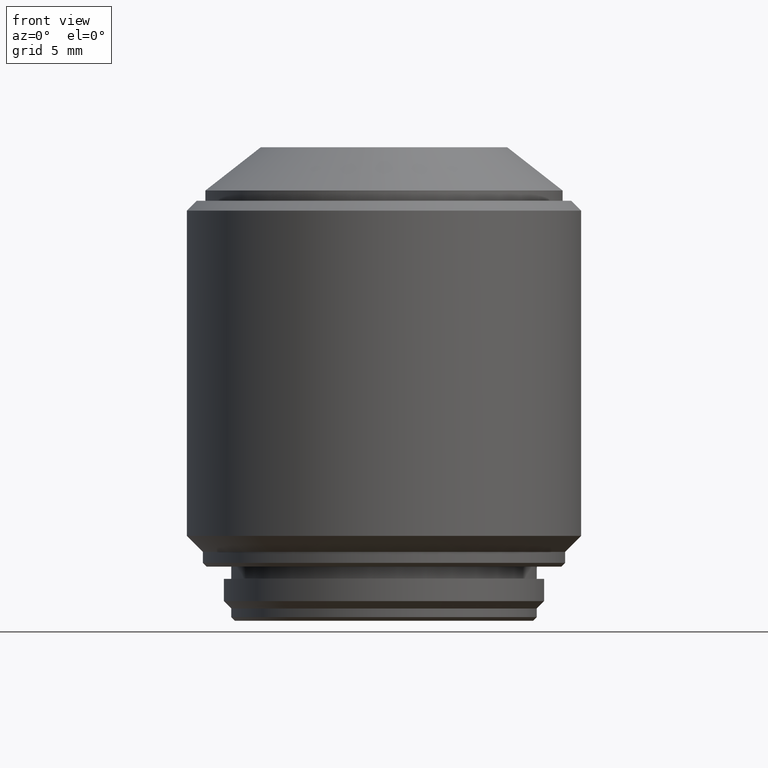
[diagram: clean part render]
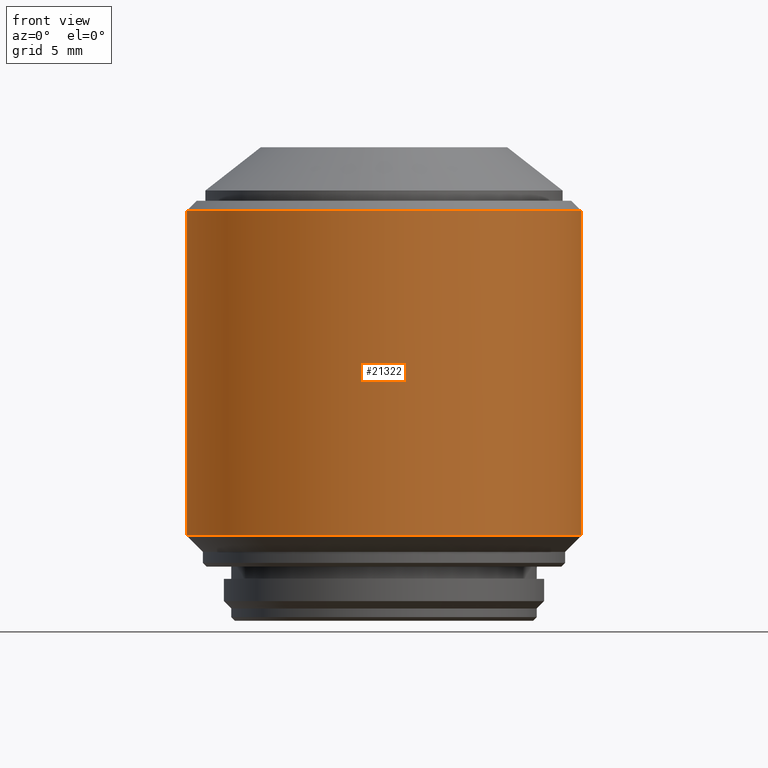
[diagram: same view with one face highlighted and labeled with its STEP entity id]
A machine part, front view. The second image highlights one B-rep face of the part: STEP entity #21322.
In plain terms, the highlighted cylindrical surface (partial cylindrical patch) has radius 16 mm, axis along (0, 0, -1).
Its self-contained STEP definition (entity closure, byte-faithful):
#663 = EDGE_LOOP ( 'NONE', ( #6237, #21245, #6959, #5914 ) ) ;
#1133 = DIRECTION ( 'NONE',  ( 0.000000000000000000, 0.000000000000000000, -1.000000000000000000 ) ) ;
#5695 = VERTEX_POINT ( 'NONE', #10305 ) ;
#5914 = ORIENTED_EDGE ( 'NONE', *, *, #10398, .T. ) ;
#6008 = DIRECTION ( 'NONE',  ( 1.000000000000000000, 0.000000000000000000, 0.000000000000000000 ) ) ;
#6174 = AXIS2_PLACEMENT_3D ( 'NONE', #13878, #23246, #10052 ) ;
#6237 = ORIENTED_EDGE ( 'NONE', *, *, #16506, .F. ) ;
#6426 = LINE ( 'NONE', #23743, #11538 ) ;
#6959 = ORIENTED_EDGE ( 'NONE', *, *, #12247, .T. ) ;
#7082 = DIRECTION ( 'NONE',  ( -1.000000000000000000, 0.000000000000000000, 0.000000000000000000 ) ) ;
#7157 = CARTESIAN_POINT ( 'NONE',  ( -15.99999999999998579, 0.000000000000000000, 33.30000000000000426 ) ) ;
#8249 = VECTOR ( 'NONE', #1133, 1000.000000000000000 ) ;
#10052 = DIRECTION ( 'NONE',  ( -1.000000000000000000, 0.000000000000000000, 0.000000000000000000 ) ) ;
#10305 = CARTESIAN_POINT ( 'NONE',  ( -15.99999999999999289, 1.959434878635763948E-15, 6.899999999999999467 ) ) ;
#10398 = EDGE_CURVE ( 'NONE', #5695, #10740, #18601, .T. ) ;
#10740 = VERTEX_POINT ( 'NONE', #22122 ) ;
#11538 = VECTOR ( 'NONE', #23362, 1000.000000000000000 ) ;
#12247 = EDGE_CURVE ( 'NONE', #13995, #5695, #18087, .T. ) ;
#12986 = FACE_OUTER_BOUND ( 'NONE', #663, .T. ) ;
#13878 = CARTESIAN_POINT ( 'NONE',  ( 0.000000000000000000, 0.000000000000000000, 6.899999999999999467 ) ) ;
#13995 = VERTEX_POINT ( 'NONE', #7157 ) ;
#14159 = DIRECTION ( 'NONE',  ( 0.000000000000000000, 0.000000000000000000, -1.000000000000000000 ) ) ;
#14250 = AXIS2_PLACEMENT_3D ( 'NONE', #24278, #16877, #7082 ) ;
#15341 = CYLINDRICAL_SURFACE ( 'NONE', #14250, 16.00000000000000000 ) ;
#15502 = EDGE_CURVE ( 'NONE', #23435, #13995, #23569, .T. ) ;
#16506 = EDGE_CURVE ( 'NONE', #23435, #10740, #6426, .T. ) ;
#16877 = DIRECTION ( 'NONE',  ( 0.000000000000000000, 0.000000000000000000, -1.000000000000000000 ) ) ;
#17425 = CARTESIAN_POINT ( 'NONE',  ( 0.000000000000000000, 0.000000000000000000, 33.30000000000000426 ) ) ;
#17919 = CARTESIAN_POINT ( 'NONE',  ( 15.99999999999998579, 1.959434878635763554E-15, 33.30000000000000426 ) ) ;
#18087 = LINE ( 'NONE', #18329, #8249 ) ;
#18329 = CARTESIAN_POINT ( 'NONE',  ( -16.00000000000000000, 0.000000000000000000, 38.44999999999999574 ) ) ;
#18601 = CIRCLE ( 'NONE', #6174, 16.00000000000000000 ) ;
#21245 = ORIENTED_EDGE ( 'NONE', *, *, #15502, .T. ) ;
#21322 = ADVANCED_FACE ( 'NONE', ( #12986 ), #15341, .T. ) ;
#22122 = CARTESIAN_POINT ( 'NONE',  ( 15.99999999999999289, 0.000000000000000000, 6.899999999999999467 ) ) ;
#23246 = DIRECTION ( 'NONE',  ( 0.000000000000000000, 0.000000000000000000, 1.000000000000000000 ) ) ;
#23362 = DIRECTION ( 'NONE',  ( 0.000000000000000000, 0.000000000000000000, -1.000000000000000000 ) ) ;
#23435 = VERTEX_POINT ( 'NONE', #17919 ) ;
#23569 = CIRCLE ( 'NONE', #24764, 16.00000000000000000 ) ;
#23743 = CARTESIAN_POINT ( 'NONE',  ( 16.00000000000000000, 1.959434878635765131E-15, 38.44999999999999574 ) ) ;
#24278 = CARTESIAN_POINT ( 'NONE',  ( 0.000000000000000000, 0.000000000000000000, 38.44999999999999574 ) ) ;
#24764 = AXIS2_PLACEMENT_3D ( 'NONE', #17425, #14159, #6008 ) ;